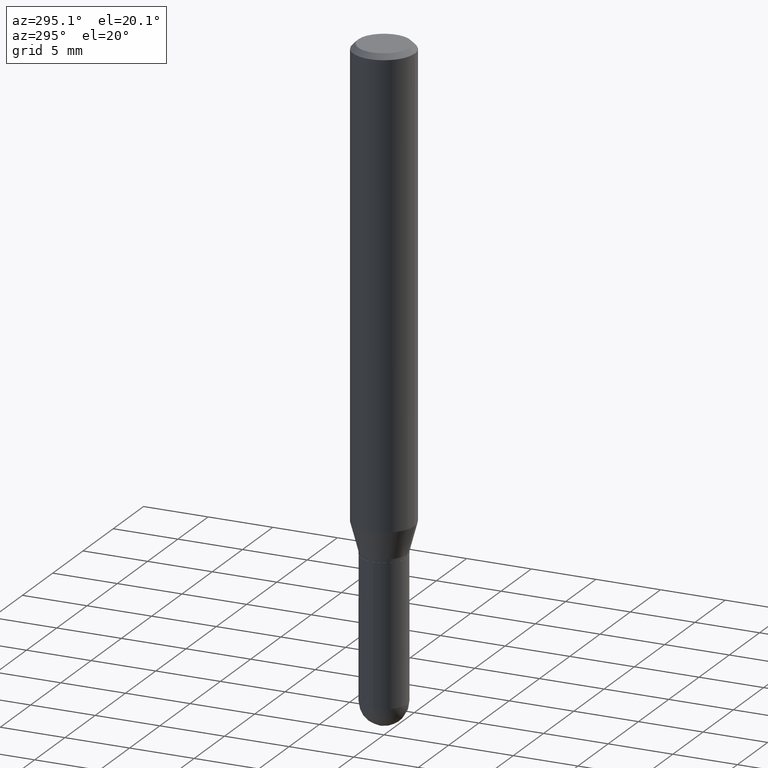
[diagram: clean part render]
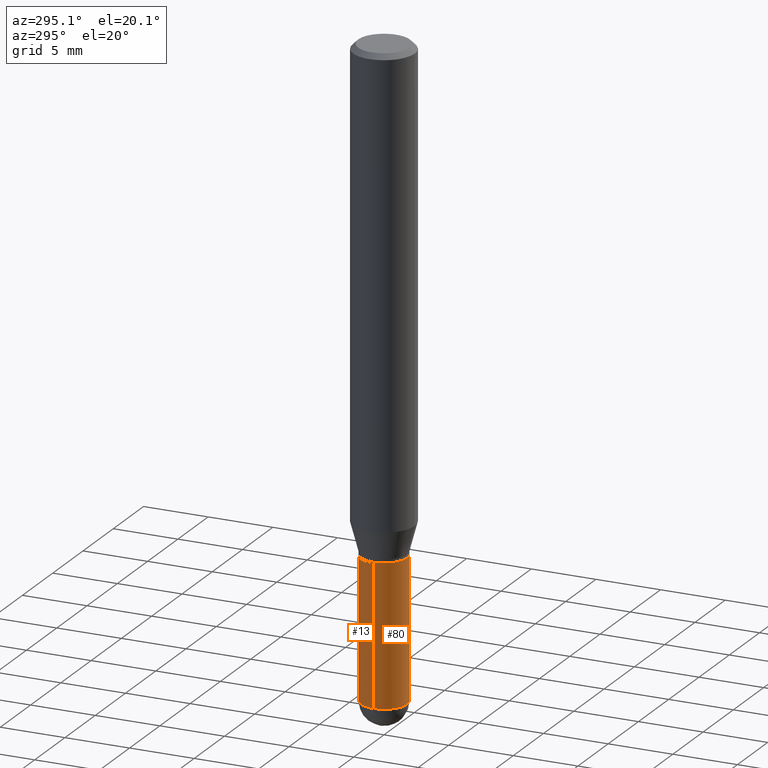
[diagram: same view with one multi-face feature highlighted, each face labeled with its STEP entity id]
A machine part, auxiliary view. The highlighted faces form ONE feature: a constant-radius fillet chain: 2 tangent blend faces with common blend radius 1.7856 mm. The faces share edges in the B-rep.
Their STEP definitions:
[1] entity #80 (Cylinder):
#15 = DIRECTION ( 'NONE',  ( 1.000000000000000000, -6.982962677686261189E-15, 0.000000000000000000 ) ) ;
#63 = EDGE_CURVE ( 'NONE', #256, #404, #421, .T. ) ;
#71 = CARTESIAN_POINT ( 'NONE',  ( -4.995115432393033060E-16, -0.07030000000000674598, -1.929699999999999527 ) ) ;
#80 = ADVANCED_FACE ( 'NONE', ( #175 ), #449, .T. ) ;
#88 = AXIS2_PLACEMENT_3D ( 'NONE', #313, #127, #116 ) ;
#91 = VECTOR ( 'NONE', #135, 39.37007874015748143 ) ;
#109 = ORIENTED_EDGE ( 'NONE', *, *, #198, .F. ) ;
#116 = DIRECTION ( 'NONE',  ( 1.000000000000000000, -6.982962677686261189E-15, 0.000000000000000000 ) ) ;
#127 = DIRECTION ( 'NONE',  ( -2.445468806185136597E-29, 3.491481338843145583E-15, 1.000000000000000000 ) ) ;
#134 = VERTEX_POINT ( 'NONE', #71 ) ;
#135 = DIRECTION ( 'NONE',  ( -2.445468806185136877E-29, 3.491481338843145188E-15, 1.000000000000000000 ) ) ;
#142 = CARTESIAN_POINT ( 'NONE',  ( 0.07030000000000004301, -6.478269050156512001E-15, -1.929699999999999971 ) ) ;
#147 = EDGE_CURVE ( 'NONE', #256, #134, #506, .T. ) ;
#149 = CARTESIAN_POINT ( 'NONE',  ( 0.07030000000000005689, -5.728124284506063124E-15, -1.499999999999999778 ) ) ;
#152 = CIRCLE ( 'NONE', #88, 0.07030000000000004301 ) ;
#162 = ORIENTED_EDGE ( 'NONE', *, *, #168, .T. ) ;
#164 = EDGE_LOOP ( 'NONE', ( #482, #446, #432, #162, #109 ) ) ;
#168 = EDGE_CURVE ( 'NONE', #200, #239, #224, .T. ) ;
#173 = AXIS2_PLACEMENT_3D ( 'NONE', #414, #250, #409 ) ;
#175 = FACE_OUTER_BOUND ( 'NONE', #164, .T. ) ;
#188 = CARTESIAN_POINT ( 'NONE',  ( 0.07030000000000004301, -4.909022762413449473E-16, 3.427952273384545239E-30 ) ) ;
#198 = EDGE_CURVE ( 'NONE', #404, #239, #455, .T. ) ;
#200 = VERTEX_POINT ( 'NONE', #142 ) ;
#212 = CARTESIAN_POINT ( 'NONE',  ( -0.07030000000000004301, 4.995115432393507363E-16, -3.458011368449201672E-30 ) ) ;
#224 = LINE ( 'NONE', #188, #91 ) ;
#239 = VERTEX_POINT ( 'NONE', #149 ) ;
#246 = DIRECTION ( 'NONE',  ( -2.445468806185136877E-29, 3.491481338843145188E-15, 1.000000000000000000 ) ) ;
#250 = DIRECTION ( 'NONE',  ( -2.445468806185136597E-29, 3.491481338843145583E-15, 1.000000000000000000 ) ) ;
#256 = VERTEX_POINT ( 'NONE', #275 ) ;
#275 = CARTESIAN_POINT ( 'NONE',  ( -0.07030000000000004301, -5.487855230675816416E-15, -1.929699999999999971 ) ) ;
#296 = VECTOR ( 'NONE', #246, 39.37007874015748143 ) ;
#309 = CARTESIAN_POINT ( 'NONE',  ( -0.07030000000000007077, -5.487855230675816416E-15, -1.499999999999999778 ) ) ;
#313 = CARTESIAN_POINT ( 'NONE',  ( 4.719021155295457704E-29, -6.737511539565617508E-15, -1.929699999999999971 ) ) ;
#372 = AXIS2_PLACEMENT_3D ( 'NONE', #383, #494, #504 ) ;
#375 = CARTESIAN_POINT ( 'NONE',  ( 4.719021155295457704E-29, -6.737511539565617508E-15, -1.929699999999999971 ) ) ;
#380 = DIRECTION ( 'NONE',  ( -2.445468806185136597E-29, 3.491481338843145583E-15, 1.000000000000000000 ) ) ;
#383 = CARTESIAN_POINT ( 'NONE',  ( 3.668203209277704335E-29, -5.237222008264717388E-15, -1.499999999999999778 ) ) ;
#404 = VERTEX_POINT ( 'NONE', #309 ) ;
#409 = DIRECTION ( 'NONE',  ( 1.000000000000000000, -6.982962677686268288E-15, 4.876176775795936353E-29 ) ) ;
#411 = AXIS2_PLACEMENT_3D ( 'NONE', #375, #380, #15 ) ;
#414 = CARTESIAN_POINT ( 'NONE',  ( 0.000000000000000000, 0.000000000000000000, 0.000000000000000000 ) ) ;
#421 = LINE ( 'NONE', #212, #296 ) ;
#432 = ORIENTED_EDGE ( 'NONE', *, *, #440, .T. ) ;
#440 = EDGE_CURVE ( 'NONE', #134, #200, #152, .T. ) ;
#446 = ORIENTED_EDGE ( 'NONE', *, *, #147, .T. ) ;
#449 = CYLINDRICAL_SURFACE ( 'NONE', #173, 0.07030000000000004301 ) ;
#455 = CIRCLE ( 'NONE', #372, 0.07030000000000005689 ) ;
#482 = ORIENTED_EDGE ( 'NONE', *, *, #63, .F. ) ;
#494 = DIRECTION ( 'NONE',  ( -2.445468806185136597E-29, 3.491481338843145583E-15, 1.000000000000000000 ) ) ;
#504 = DIRECTION ( 'NONE',  ( 1.000000000000000000, -6.982962677686273810E-15, 0.000000000000000000 ) ) ;
#506 = CIRCLE ( 'NONE', #411, 0.07030000000000004301 ) ;
[2] entity #13 (Cylinder):
#1 = EDGE_CURVE ( 'NONE', #200, #512, #430, .T. ) ;
#4 = CIRCLE ( 'NONE', #364, 0.07030000000000004301 ) ;
#13 = ADVANCED_FACE ( 'NONE', ( #65 ), #503, .T. ) ;
#22 = DIRECTION ( 'NONE',  ( 1.000000000000000000, -6.982962677686261189E-15, 0.000000000000000000 ) ) ;
#32 = DIRECTION ( 'NONE',  ( 1.000000000000000000, -6.982962677686268288E-15, 4.876176775795936353E-29 ) ) ;
#53 = EDGE_CURVE ( 'NONE', #239, #404, #327, .T. ) ;
#63 = EDGE_CURVE ( 'NONE', #256, #404, #421, .T. ) ;
#65 = FACE_OUTER_BOUND ( 'NONE', #351, .T. ) ;
#66 = ORIENTED_EDGE ( 'NONE', *, *, #53, .F. ) ;
#90 = CARTESIAN_POINT ( 'NONE',  ( 4.719021155295457704E-29, -6.737511539565617508E-15, -1.929699999999999971 ) ) ;
#91 = VECTOR ( 'NONE', #135, 39.37007874015748143 ) ;
#103 = CARTESIAN_POINT ( 'NONE',  ( 0.000000000000000000, 0.000000000000000000, 0.000000000000000000 ) ) ;
#133 = ORIENTED_EDGE ( 'NONE', *, *, #139, .T. ) ;
#135 = DIRECTION ( 'NONE',  ( -2.445468806185136877E-29, 3.491481338843145188E-15, 1.000000000000000000 ) ) ;
#137 = ORIENTED_EDGE ( 'NONE', *, *, #168, .F. ) ;
#139 = EDGE_CURVE ( 'NONE', #512, #256, #4, .T. ) ;
#142 = CARTESIAN_POINT ( 'NONE',  ( 0.07030000000000004301, -6.478269050156512001E-15, -1.929699999999999971 ) ) ;
#149 = CARTESIAN_POINT ( 'NONE',  ( 0.07030000000000005689, -5.728124284506063124E-15, -1.499999999999999778 ) ) ;
#168 = EDGE_CURVE ( 'NONE', #200, #239, #224, .T. ) ;
#177 = DIRECTION ( 'NONE',  ( -2.445468806185136597E-29, 3.491481338843145583E-15, 1.000000000000000000 ) ) ;
#188 = CARTESIAN_POINT ( 'NONE',  ( 0.07030000000000004301, -4.909022762413449473E-16, 3.427952273384545239E-30 ) ) ;
#200 = VERTEX_POINT ( 'NONE', #142 ) ;
#203 = AXIS2_PLACEMENT_3D ( 'NONE', #103, #226, #32 ) ;
#205 = DIRECTION ( 'NONE',  ( 1.000000000000000000, -6.982962677686261189E-15, 0.000000000000000000 ) ) ;
#212 = CARTESIAN_POINT ( 'NONE',  ( -0.07030000000000004301, 4.995115432393507363E-16, -3.458011368449201672E-30 ) ) ;
#214 = ORIENTED_EDGE ( 'NONE', *, *, #63, .T. ) ;
#215 = CARTESIAN_POINT ( 'NONE',  ( 4.719021155295457704E-29, -6.737511539565617508E-15, -1.929699999999999971 ) ) ;
#224 = LINE ( 'NONE', #188, #91 ) ;
#226 = DIRECTION ( 'NONE',  ( -2.445468806185136597E-29, 3.491481338843145583E-15, 1.000000000000000000 ) ) ;
#239 = VERTEX_POINT ( 'NONE', #149 ) ;
#246 = DIRECTION ( 'NONE',  ( -2.445468806185136877E-29, 3.491481338843145188E-15, 1.000000000000000000 ) ) ;
#249 = ORIENTED_EDGE ( 'NONE', *, *, #1, .T. ) ;
#256 = VERTEX_POINT ( 'NONE', #275 ) ;
#275 = CARTESIAN_POINT ( 'NONE',  ( -0.07030000000000004301, -5.487855230675816416E-15, -1.929699999999999971 ) ) ;
#276 = CARTESIAN_POINT ( 'NONE',  ( 4.909022762413921804E-16, 0.07029999999999332616, -1.929700000000000193 ) ) ;
#296 = VECTOR ( 'NONE', #246, 39.37007874015748143 ) ;
#309 = CARTESIAN_POINT ( 'NONE',  ( -0.07030000000000007077, -5.487855230675816416E-15, -1.499999999999999778 ) ) ;
#327 = CIRCLE ( 'NONE', #342, 0.07030000000000005689 ) ;
#336 = CARTESIAN_POINT ( 'NONE',  ( 3.668203209277704335E-29, -5.237222008264717388E-15, -1.499999999999999778 ) ) ;
#342 = AXIS2_PLACEMENT_3D ( 'NONE', #336, #500, #463 ) ;
#351 = EDGE_LOOP ( 'NONE', ( #133, #214, #66, #137, #249 ) ) ;
#364 = AXIS2_PLACEMENT_3D ( 'NONE', #215, #177, #22 ) ;
#404 = VERTEX_POINT ( 'NONE', #309 ) ;
#421 = LINE ( 'NONE', #212, #296 ) ;
#430 = CIRCLE ( 'NONE', #497, 0.07030000000000004301 ) ;
#457 = DIRECTION ( 'NONE',  ( -2.445468806185136597E-29, 3.491481338843145583E-15, 1.000000000000000000 ) ) ;
#463 = DIRECTION ( 'NONE',  ( 1.000000000000000000, -6.982962677686273810E-15, 0.000000000000000000 ) ) ;
#497 = AXIS2_PLACEMENT_3D ( 'NONE', #90, #457, #205 ) ;
#500 = DIRECTION ( 'NONE',  ( -2.445468806185136597E-29, 3.491481338843145583E-15, 1.000000000000000000 ) ) ;
#503 = CYLINDRICAL_SURFACE ( 'NONE', #203, 0.07030000000000004301 ) ;
#512 = VERTEX_POINT ( 'NONE', #276 ) ;